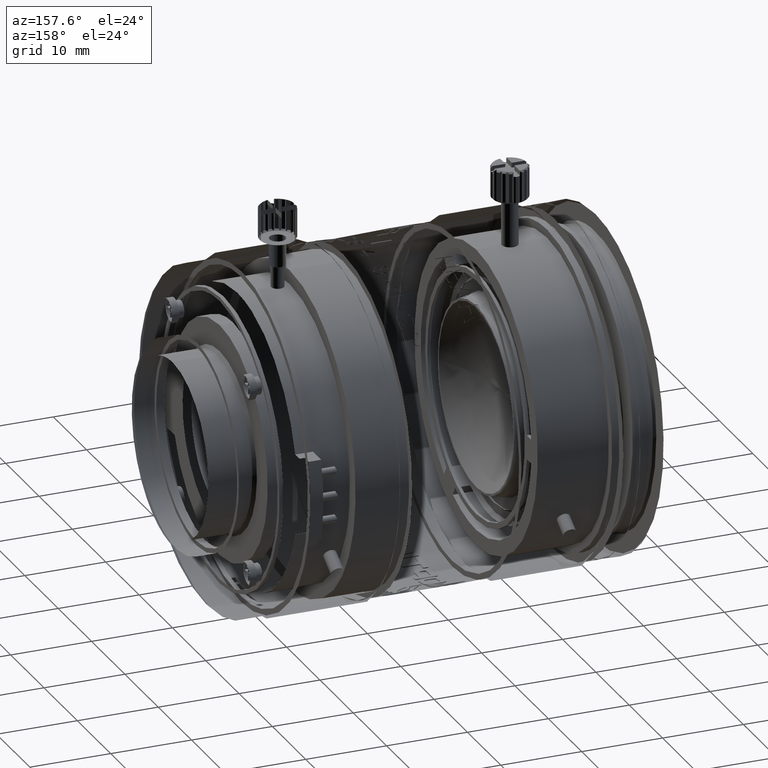
[diagram: clean part render]
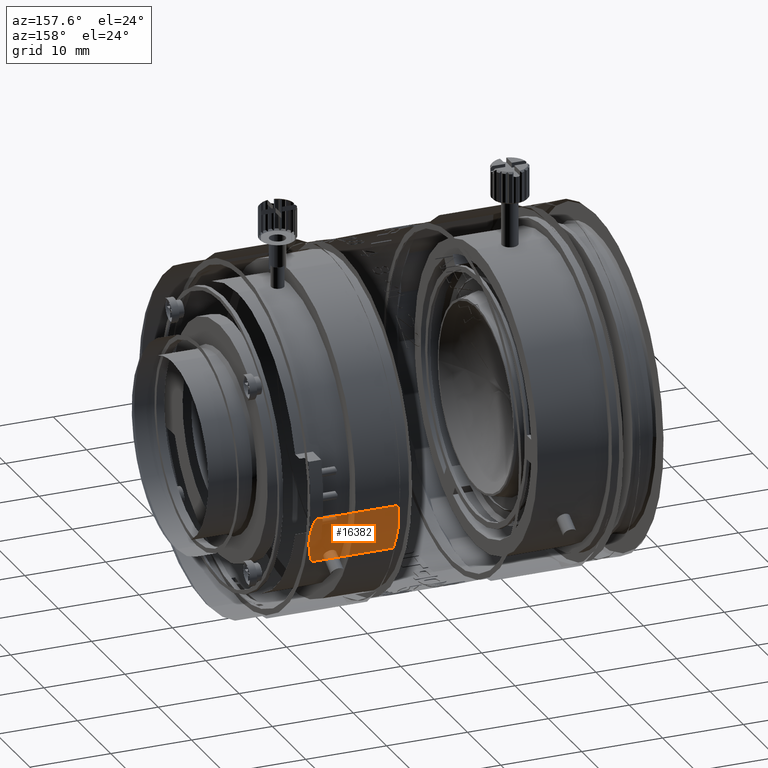
[diagram: same view with one face highlighted and labeled with its STEP entity id]
A machine part, auxiliary view. The second image highlights one B-rep face of the part: STEP entity #16382.
In plain terms, the highlighted face is a freeform B-spline surface patch.
Its self-contained STEP definition (entity closure, byte-faithful):
#680 = CARTESIAN_POINT ( 'NONE',  ( -8.716345393607971559, 19.92379489111382540, -6.200750736758130266 ) ) ;
#734 = CARTESIAN_POINT ( 'NONE',  ( -9.048541316701678383, 19.78963107783330244, -7.599253631794630870 ) ) ;
#742 = ORIENTED_EDGE ( 'NONE', *, *, #1634, .F. ) ;
#1610 = CARTESIAN_POINT ( 'NONE',  ( -8.762287523465445815, 20.72206330961980569, -2.814675445753260341 ) ) ;
#1634 = EDGE_CURVE ( 'NONE', #67974, #55600, #6472, .T. ) ;
#2208 = VERTEX_POINT ( 'NONE', #734 ) ;
#2599 = CARTESIAN_POINT ( 'NONE',  ( -19.50877250080279524, 20.59391676563364371, -3.203934605329044061 ) ) ;
#2829 = CARTESIAN_POINT ( 'NONE',  ( -8.599999999999999645, 20.25278580606297041, -4.420167032638250504 ) ) ;
#4039 = CARTESIAN_POINT ( 'NONE',  ( -19.52396356014457268, 19.94793813540263727, -5.997155599758865030 ) ) ;
#5511 = CARTESIAN_POINT ( 'NONE',  ( -19.59999999999999787, 20.35320507139445212, -4.038507546796754610 ) ) ;
#5542 = VERTEX_POINT ( 'NONE', #56664 ) ;
#5588 = CARTESIAN_POINT ( 'NONE',  ( -8.599999999999997868, 20.35489399672012922, -3.595947976589342066 ) ) ;
#6278 = CARTESIAN_POINT ( 'NONE',  ( -8.599999999999997868, 19.89934915949628191, -5.591820308262687611 ) ) ;
#6472 = B_SPLINE_CURVE_WITH_KNOTS ( 'NONE', 1,
 ( #27508, #38470 ),
 .UNSPECIFIED., .F., .F.,
 ( 2, 2 ),
 ( -1.000000000000000000, 0.0000000000000000000 ),
 .UNSPECIFIED. ) ;
#6556 = CARTESIAN_POINT ( 'NONE',  ( -8.771783715769839063, 20.73785748341846613, -2.768519236418677920 ) ) ;
#6852 = CARTESIAN_POINT ( 'NONE',  ( -19.15145868332784929, 21.12703409062265081, -1.739708178672499939 ) ) ;
#8214 = EDGE_LOOP ( 'NONE', ( #46249, #28736, #17973, #742, #52493, #9579, #43244, #24517 ) ) ;
#9043 = EDGE_CURVE ( 'NONE', #2208, #5542, #56014, .T. ) ;
#9326 = CARTESIAN_POINT ( 'NONE',  ( -19.34184123144623513, 19.84258044629066120, -6.901023304025326155 ) ) ;
#9579 = ORIENTED_EDGE ( 'NONE', *, *, #45945, .T. ) ;
#9673 = CARTESIAN_POINT ( 'NONE',  ( -19.40801932483736181, 19.87390015737673110, -6.602805845929520245 ) ) ;
#13892 = CARTESIAN_POINT ( 'NONE',  ( -19.45669731857383056, 20.68959000654463765, -2.910906607219867048 ) ) ;
#14475 = VERTEX_POINT ( 'NONE', #33292 ) ;
#14634 = CARTESIAN_POINT ( 'NONE',  ( -19.15137742685825017, 19.78961592031835082, -7.599519739404159147 ) ) ;
#16382 = ADVANCED_FACE ( 'NONE', ( #54022 ), #26882, .F. ) ;
#16596 = CARTESIAN_POINT ( 'NONE',  ( -8.733895494817533134, 19.91033912435172226, -6.302224168418981698 ) ) ;
#16827 = CARTESIAN_POINT ( 'NONE',  ( -8.932158819836065078, 20.97710436400486600, -2.110938006820242130 ) ) ;
#17824 = CARTESIAN_POINT ( 'NONE',  ( -19.53026862255326179, 20.54864171034379083, -3.350344849250451951 ) ) ;
#17973 = ORIENTED_EDGE ( 'NONE', *, *, #19470, .F. ) ;
#18515 = CARTESIAN_POINT ( 'NONE',  ( -19.46610450522384284, 20.67302828634734269, -2.960664618918959157 ) ) ;
#19470 = EDGE_CURVE ( 'NONE', #55600, #14475, #43544, .T. ) ;
#20143 = EDGE_CURVE ( 'NONE', #51059, #14475, #53938, .T. ) ;
#22966 = CARTESIAN_POINT ( 'NONE',  ( -8.691227499313788130, 19.94461300028477524, -6.048720276179185618 ) ) ;
#24399 = CARTESIAN_POINT ( 'NONE',  ( -8.599999999999999645, 20.35320507218845165, -4.038507542795359839 ) ) ;
#24517 = ORIENTED_EDGE ( 'NONE', *, *, #9043, .F. ) ;
#26263 = CARTESIAN_POINT ( 'NONE',  ( -8.599999999999999645, 20.08984689568229598, -5.192355146205329675 ) ) ;
#26285 = CARTESIAN_POINT ( 'NONE',  ( -19.57486491577825305, 20.01188033741848926, -5.594463444349925041 ) ) ;
#26882 =( BOUNDED_SURFACE ( )  B_SPLINE_SURFACE ( 1, 3, ( 
 ( #37756, #6278, #5588, #59651 ),
 ( #60003, #33154, #27149, #64958 ) ),
 .UNSPECIFIED., .F., .F., .F. ) 
 B_SPLINE_SURFACE_WITH_KNOTS ( ( 2, 2 ),
 ( 4, 4 ),
 ( 0.0000000000000000000, 1.000000000000000000 ),
 ( 0.0000000000000000000, 1.000000000000000000 ),
 .UNSPECIFIED. ) 
 GEOMETRIC_REPRESENTATION_ITEM ( )  RATIONAL_B_SPLINE_SURFACE ( (
 ( 1.000000000000000000, 0.9904147302256102181, 0.9904147302256102181, 1.000000000000000000),
 ( 1.000000000000000000, 0.9904147302256102181, 0.9904147302256102181, 1.000000000000000000) ) ) 
 REPRESENTATION_ITEM ( '' )  SURFACE ( )  );
#26981 = CARTESIAN_POINT ( 'NONE',  ( -19.21254839728487340, 19.80096518660728222, -7.399337456134977842 ) ) ;
#27149 = CARTESIAN_POINT ( 'NONE',  ( -19.60000000000000142, 20.35489399672012922, -3.595947976589342066 ) ) ;
#27508 = CARTESIAN_POINT ( 'NONE',  ( -19.15145868332784929, 21.12703409062265081, -1.739708178672499939 ) ) ;
#27904 = CARTESIAN_POINT ( 'NONE',  ( -8.827454230749495423, 19.84827595480171780, -6.801035668531935308 ) ) ;
#28393 = VERTEX_POINT ( 'NONE', #5511 ) ;
#28736 = ORIENTED_EDGE ( 'NONE', *, *, #20143, .T. ) ;
#30894 = CARTESIAN_POINT ( 'NONE',  ( -19.42821633519882951, 19.88537949807444605, -6.503469215721396246 ) ) ;
#31129 = CARTESIAN_POINT ( 'NONE',  ( -19.59999999999999787, 20.08984689639224896, -5.192355143458330602 ) ) ;
#33154 = CARTESIAN_POINT ( 'NONE',  ( -19.60000000000000142, 19.89934915949628191, -5.591820308262687611 ) ) ;
#33292 = CARTESIAN_POINT ( 'NONE',  ( -8.599999999999999645, 20.35320507218845165, -4.038507542795359839 ) ) ;
#33544 = CARTESIAN_POINT ( 'NONE',  ( -8.926083718702361836, 19.81236646620899933, -7.198444875052250502 ) ) ;
#34221 =( BOUNDED_CURVE ( )  B_SPLINE_CURVE ( 3, ( #39619, #55181, #43901, #38235 ),
 .UNSPECIFIED., .F., .F. ) 
 B_SPLINE_CURVE_WITH_KNOTS ( ( 4, 4 ),
 ( -0.06576301288847290205, 0.0000000000000000000 ),
 .UNSPECIFIED. ) 
 CURVE ( )  GEOMETRIC_REPRESENTATION_ITEM ( )  RATIONAL_B_SPLINE_CURVE ( ( 1.000000000000000000, 0.9996396346472409267, 0.9996396346472409267, 1.000000000000000000 ) ) 
 REPRESENTATION_ITEM ( '' )  );
#34772 = CARTESIAN_POINT ( 'NONE',  ( -19.59999999999999787, 20.35320507139445212, -4.038507546796754610 ) ) ;
#35054 = EDGE_CURVE ( 'NONE', #28393, #67974, #61192, .T. ) ;
#35477 = CARTESIAN_POINT ( 'NONE',  ( -19.27391628155728753, 20.97361356341145466, -2.110688916698223672 ) ) ;
#37756 = CARTESIAN_POINT ( 'NONE',  ( -8.599999999999999645, 19.78758616283964855, -7.635967195264409035 ) ) ;
#38235 = CARTESIAN_POINT ( 'NONE',  ( -19.59999999999999787, 20.08984689639224896, -5.192355143458330602 ) ) ;
#38470 = CARTESIAN_POINT ( 'NONE',  ( -9.048622549187300024, 21.12713587033029938, -1.739461834768714965 ) ) ;
#38520 = CARTESIAN_POINT ( 'NONE',  ( -8.669731377580067289, 19.96734660943043238, -5.897165092940730879 ) ) ;
#39089 = CARTESIAN_POINT ( 'NONE',  ( -8.823393727969804701, 20.82032775121214030, -2.532562615713545462 ) ) ;
#39619 = CARTESIAN_POINT ( 'NONE',  ( -19.59999999999999787, 20.35320507139445212, -4.038507546796754610 ) ) ;
#39726 = CARTESIAN_POINT ( 'NONE',  ( -19.58743527137943019, 20.40530481469314239, -3.840494154273969230 ) ) ;
#40635 = CARTESIAN_POINT ( 'NONE',  ( -9.048622549187300024, 21.12713587033029938, -1.739461834768714965 ) ) ;
#43244 = ORIENTED_EDGE ( 'NONE', *, *, #57562, .F. ) ;
#43480 = CARTESIAN_POINT ( 'NONE',  ( -8.599999999999999645, 20.08984689568229598, -5.192355146205329675 ) ) ;
#43544 = B_SPLINE_CURVE_WITH_KNOTS ( 'NONE', 3,
 ( #59241, #65930, #16827, #54997, #39089, #43719, #6556, #1610, #49699, #65243, #53961 ),
 .UNSPECIFIED., .F., .F.,
 ( 4, 2, 1, 2, 2, 4 ),
 ( -1.000000000000000000, -0.7499999999999962252, -0.6249999999999954481, -0.5624999999999952260, -0.4999999999999950040, 0.0000000000000000000 ),
 .UNSPECIFIED. ) ;
#43719 = CARTESIAN_POINT ( 'NONE',  ( -8.791980760934157146, 20.77061556269836373, -2.674039127139415495 ) ) ;
#43833 = CARTESIAN_POINT ( 'NONE',  ( -8.612564728709543260, 20.05087234100281890, -5.393364283564377359 ) ) ;
#43901 = CARTESIAN_POINT ( 'NONE',  ( -19.59999999999999787, 20.16496809817105884, -4.804921550521696894 ) ) ;
#44874 = CARTESIAN_POINT ( 'NONE',  ( -9.048541316701678383, 19.78963107783330244, -7.599253631794630870 ) ) ;
#45945 = EDGE_CURVE ( 'NONE', #28393, #68545, #34221, .T. ) ;
#46249 = ORIENTED_EDGE ( 'NONE', *, *, #46904, .F. ) ;
#46720 = CARTESIAN_POINT ( 'NONE',  ( -19.15137742685825017, 19.78961592031835082, -7.599519739404159147 ) ) ;
#46904 = EDGE_CURVE ( 'NONE', #51059, #2208, #58479, .T. ) ;
#47067 = CARTESIAN_POINT ( 'NONE',  ( -9.048541316701678383, 19.78963107783330244, -7.599253631794630870 ) ) ;
#47873 = CARTESIAN_POINT ( 'NONE',  ( -19.59999999999999787, 20.08984689639224896, -5.192355143458330602 ) ) ;
#49115 = CARTESIAN_POINT ( 'NONE',  ( -8.631568164193250681, 20.01539559208885777, -5.594515451311128373 ) ) ;
#49699 = CARTESIAN_POINT ( 'NONE',  ( -8.676036441328831117, 20.57453953899662480, -3.251835477461858748 ) ) ;
#50338 = CARTESIAN_POINT ( 'NONE',  ( -19.56843183594017432, 20.46061758970457234, -3.643870426496373494 ) ) ;
#51059 = VERTEX_POINT ( 'NONE', #26263 ) ;
#51257 = CARTESIAN_POINT ( 'NONE',  ( -8.599999999999999645, 20.08984689568229598, -5.192355146205329675 ) ) ;
#52470 = CARTESIAN_POINT ( 'NONE',  ( -19.43771247971825389, 19.89117583474686768, -6.455031328403215696 ) ) ;
#52493 = ORIENTED_EDGE ( 'NONE', *, *, #35054, .F. ) ;
#53161 = CARTESIAN_POINT ( 'NONE',  ( -19.37660639683381447, 19.85730498181780490, -6.751840833752175364 ) ) ;
#53938 =( BOUNDED_CURVE ( )  B_SPLINE_CURVE ( 3, ( #51257, #66104, #2829, #24399 ),
 .UNSPECIFIED., .F., .F. ) 
 B_SPLINE_CURVE_WITH_KNOTS ( ( 4, 4 ),
 ( -0.06576301288847290205, 0.0000000000000000000 ),
 .UNSPECIFIED. ) 
 CURVE ( )  GEOMETRIC_REPRESENTATION_ITEM ( )  RATIONAL_B_SPLINE_CURVE ( ( 1.000000000000000000, 0.9996396346472409267, 0.9996396346472409267, 1.000000000000000000 ) ) 
 REPRESENTATION_ITEM ( '' )  );
#53961 = CARTESIAN_POINT ( 'NONE',  ( -8.599999999999999645, 20.35320507218845165, -4.038507542795359839 ) ) ;
#54022 = FACE_OUTER_BOUND ( 'NONE', #8214, .T. ) ;
#54997 = CARTESIAN_POINT ( 'NONE',  ( -8.858158892872985746, 20.87178925626357184, -2.391765012677529167 ) ) ;
#55181 = CARTESIAN_POINT ( 'NONE',  ( -19.59999999999999787, 20.25278580606297041, -4.420167032638250504 ) ) ;
#55600 = VERTEX_POINT ( 'NONE', #40635 ) ;
#56014 = B_SPLINE_CURVE_WITH_KNOTS ( 'NONE', 1,
 ( #47067, #46720 ),
 .UNSPECIFIED., .F., .F.,
 ( 2, 2 ),
 ( -1.000000000000000000, 0.0000000000000000000 ),
 .UNSPECIFIED. ) ;
#56317 = CARTESIAN_POINT ( 'NONE',  ( -19.37254576948048523, 20.83353750110893543, -2.484322789583314872 ) ) ;
#56664 = CARTESIAN_POINT ( 'NONE',  ( -19.15137742685825017, 19.78961592031835082, -7.599519739404159147 ) ) ;
#57562 = EDGE_CURVE ( 'NONE', #5542, #68545, #64405, .T. ) ;
#57759 = CARTESIAN_POINT ( 'NONE',  ( -19.26784125082571109, 19.81561987152801763, -7.199734223866077976 ) ) ;
#58479 = B_SPLINE_CURVE_WITH_KNOTS ( 'NONE', 3,
 ( #43480, #43833, #49115, #38520, #22966, #680, #16596, #60052, #27904, #33544, #44874 ),
 .UNSPECIFIED., .F., .F.,
 ( 4, 2, 1, 2, 2, 4 ),
 ( -1.000000000000000000, -0.7500000000000002220, -0.6250000000000006661, -0.5625000000000002220, -0.4999999999999997780, 0.0000000000000000000 ),
 .UNSPECIFIED. ) ;
#59241 = CARTESIAN_POINT ( 'NONE',  ( -9.048622549187300024, 21.12713587033029938, -1.739461834768714965 ) ) ;
#59651 = CARTESIAN_POINT ( 'NONE',  ( -8.599999999999999645, 21.14112111403382244, -1.705743124447359538 ) ) ;
#60003 = CARTESIAN_POINT ( 'NONE',  ( -19.59999999999999787, 19.78758616283964855, -7.635967195264409035 ) ) ;
#60052 = CARTESIAN_POINT ( 'NONE',  ( -8.743302681396976084, 19.90367152540089890, -6.354240452059872979 ) ) ;
#61192 = B_SPLINE_CURVE_WITH_KNOTS ( 'NONE', 3,
 ( #34772, #39726, #50338, #17824, #2599, #61627, #18515, #13892, #56317, #35477, #6852 ),
 .UNSPECIFIED., .F., .F.,
 ( 4, 2, 1, 2, 2, 4 ),
 ( -1.000000000000000000, -0.7500000000000004441, -0.6250000000000007772, -0.5625000000000004441, -0.5000000000000002220, 0.0000000000000000000 ),
 .UNSPECIFIED. ) ;
#61627 = CARTESIAN_POINT ( 'NONE',  ( -19.48365460646682479, 20.64112384166066505, -3.057927257564249324 ) ) ;
#64405 = B_SPLINE_CURVE_WITH_KNOTS ( 'NONE', 3,
 ( #14634, #26981, #57759, #9326, #53161, #9673, #30894, #52470, #4039, #26285, #47873 ),
 .UNSPECIFIED., .F., .F.,
 ( 4, 2, 1, 2, 2, 4 ),
 ( -1.000000000000000000, -0.7500000000000003331, -0.6250000000000012212, -0.5625000000000008882, -0.5000000000000006661, 0.0000000000000000000 ),
 .UNSPECIFIED. ) ;
#64958 = CARTESIAN_POINT ( 'NONE',  ( -19.59999999999999787, 21.14112111403382244, -1.705743124447359538 ) ) ;
#65243 = CARTESIAN_POINT ( 'NONE',  ( -8.625135084697255650, 20.45742789212799551, -3.642392061196270792 ) ) ;
#65930 = CARTESIAN_POINT ( 'NONE',  ( -8.987451567353735626, 21.05050540305905926, -1.924743536262343069 ) ) ;
#66104 = CARTESIAN_POINT ( 'NONE',  ( -8.599999999999999645, 20.16496809817105884, -4.804921550521696894 ) ) ;
#66306 = CARTESIAN_POINT ( 'NONE',  ( -19.15145868332784929, 21.12703409062265081, -1.739708178672499939 ) ) ;
#67974 = VERTEX_POINT ( 'NONE', #66306 ) ;
#68545 = VERTEX_POINT ( 'NONE', #31129 ) ;